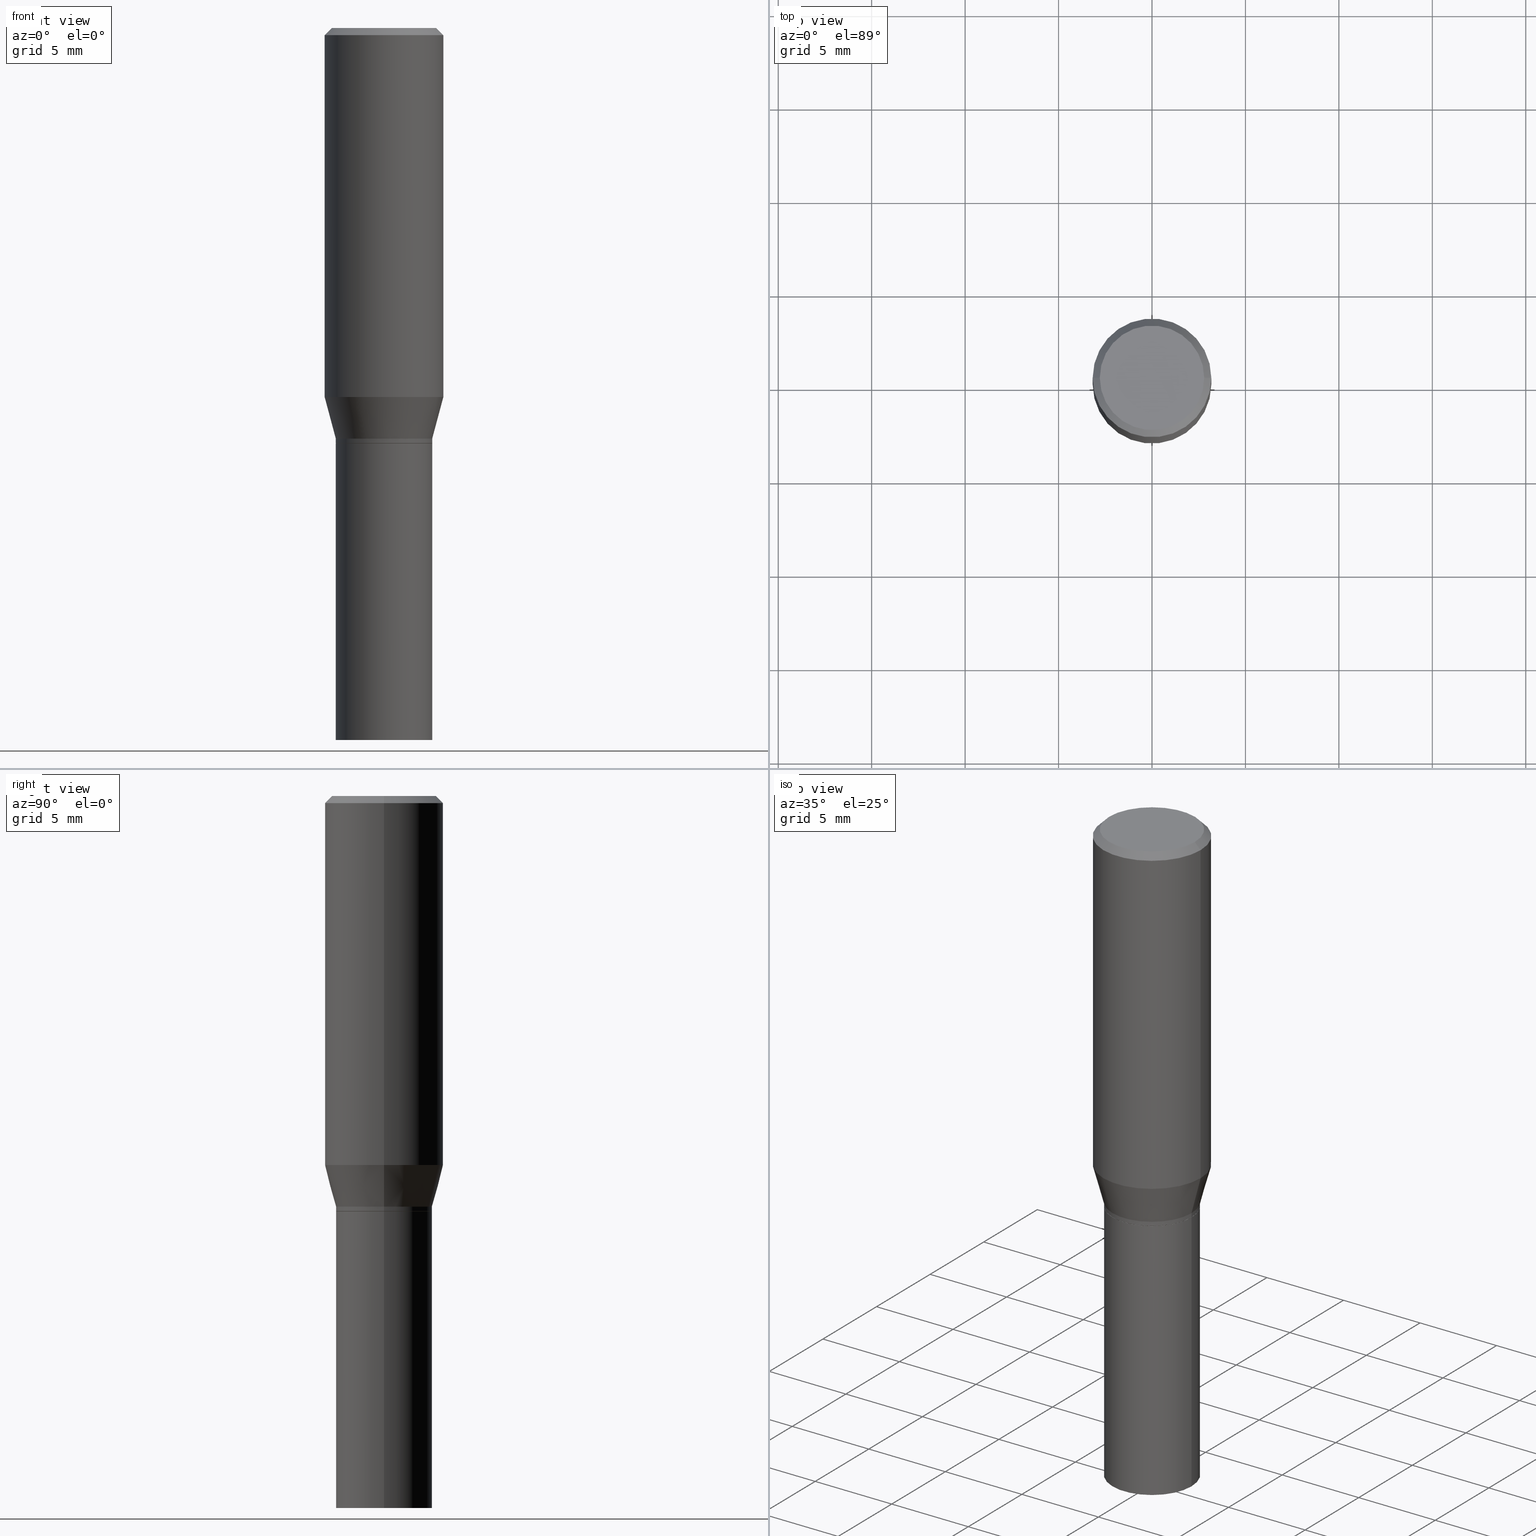
[diagram: canonical four-view strip — front | top / right | iso, engineering-drawing reading convention]
A machine part, canonical four-view strip (front | top / right | iso — engineering-drawing reading convention). The complete STEP part file that produces these views, byte-faithful:
ISO-10303-21;
HEADER;
FILE_DESCRIPTION (( 'STEP AP203' ),
    '1' );
FILE_NAME ('30525.STEP',
    '2024-03-13T16:14:10',
    ( '' ),
    ( '' ),
    'SwSTEP 2.0',
    'SolidWorks 2023',
    '' );
FILE_SCHEMA (( 'CONFIG_CONTROL_DESIGN' ));
ENDSEC;

DATA;
#1 = CARTESIAN_POINT ( 'NONE',  ( 2.139785205411994522E-29, -3.055046171487752730E-15, -0.8750000000000001110 ) ) ;
#2 = VERTEX_POINT ( 'NONE', #238 ) ;
#3 = AXIS2_PLACEMENT_3D ( 'NONE', #235, #348, #102 ) ;
#4 = AXIS2_PLACEMENT_3D ( 'NONE', #151, #255, #45 ) ;
#5 = AXIS2_PLACEMENT_3D ( 'NONE', #337, #74, #306 ) ;
#6 = CARTESIAN_POINT ( 'NONE',  ( 2.139785205411994522E-29, -3.055046171487752730E-15, -0.8750000000000001110 ) ) ;
#7 = ORIENTED_EDGE ( 'NONE', *, *, #211, .T. ) ;
#8 = DIRECTION ( 'NONE',  ( -2.445468806185136597E-29, 3.491481338843145583E-15, 1.000000000000000000 ) ) ;
#9 = PRODUCT ( '30525', '30525', '', ( #435 ) ) ;
#10 = FACE_OUTER_BOUND ( 'NONE', #294, .T. ) ;
#11 = ORIENTED_EDGE ( 'NONE', *, *, #301, .F. ) ;
#12 = DIRECTION ( 'NONE',  ( 2.438088387897960049E-29, -3.491481338843145188E-15, -1.000000000000000000 ) ) ;
#13 = ORIENTED_EDGE ( 'NONE', *, *, #37, .T. ) ;
#14 = CARTESIAN_POINT ( 'NONE',  ( 3.668203209277705088E-31, -5.237222008264718399E-17, -0.01499999999999999944 ) ) ;
#15 = VECTOR ( 'NONE', #373, 39.37007874015748143 ) ;
#16 = APPROVAL_PERSON_ORGANIZATION ( #276, #130, #96 ) ;
#17 = DIRECTION ( 'NONE',  ( 1.000000000000000000, -6.982962677686269077E-15, 0.000000000000000000 ) ) ;
#18 = ORIENTED_EDGE ( 'NONE', *, *, #37, .F. ) ;
#19 = ADVANCED_FACE ( 'NONE', ( #398 ), #426, .T. ) ;
#20 = FACE_OUTER_BOUND ( 'NONE', #75, .T. ) ;
#21 = CIRCLE ( 'NONE', #194, 0.1015500000000000014 ) ;
#22 = APPLICATION_PROTOCOL_DEFINITION ( 'international standard', 'config_control_design', 1994, #371 ) ;
#23 = CARTESIAN_POINT ( 'NONE',  ( 0.000000000000000000, 0.000000000000000000, 0.000000000000000000 ) ) ;
#24 = PERSON_AND_ORGANIZATION ( #442, #240 ) ;
#25 = AXIS2_PLACEMENT_3D ( 'NONE', #83, #262, #378 ) ;
#26 = DIRECTION ( 'NONE',  ( 1.000000000000000000, -6.982962677686264344E-15, 0.000000000000000000 ) ) ;
#27 = PERSON_AND_ORGANIZATION ( #442, #240 ) ;
#28 = CARTESIAN_POINT ( 'NONE',  ( -0.1015500000000000430, -2.298575209934939135E-15, -0.8650000000000001021 ) ) ;
#29 = DIRECTION ( 'NONE',  ( 0.2588190451025214611, 1.565188264969620982E-15, 0.9659258262890679791 ) ) ;
#30 = EDGE_CURVE ( 'NONE', #42, #159, #365, .T. ) ;
#31 = VERTEX_POINT ( 'NONE', #142 ) ;
#32 = COORDINATED_UNIVERSAL_TIME_OFFSET ( 5, 0, .BEHIND. ) ;
#33 = DIRECTION ( 'NONE',  ( 0.7071067811865595631, -2.468850131082382884E-15, 0.7071067811865354713 ) ) ;
#34 = CONICAL_SURFACE ( 'NONE', #429, 0.1015500000000000430, 0.2617993877991501850 ) ;
#35 = DIRECTION ( 'NONE',  ( -2.445468806185136597E-29, 3.491481338843145583E-15, 1.000000000000000000 ) ) ;
#36 = VERTEX_POINT ( 'NONE', #133 ) ;
#37 = EDGE_CURVE ( 'NONE', #318, #52, #246, .T. ) ;
#38 = CC_DESIGN_PERSON_AND_ORGANIZATION_ASSIGNMENT ( #241, #280, ( #416 ) ) ;
#39 = CARTESIAN_POINT ( 'NONE',  ( 3.668203209277704895E-29, -5.237222008264718177E-15, -1.500000000000000222 ) ) ;
#40 = DIRECTION ( 'NONE',  ( -2.445468806185136597E-29, 3.491481338843145583E-15, 1.000000000000000000 ) ) ;
#41 = ORIENTED_EDGE ( 'NONE', *, *, #367, .F. ) ;
#42 = VERTEX_POINT ( 'NONE', #357 ) ;
#43 = CONICAL_SURFACE ( 'NONE', #231, 0.1015500000000000430, 0.2617993877991501850 ) ;
#44 = SECURITY_CLASSIFICATION ( '', '', #284 ) ;
#45 = DIRECTION ( 'NONE',  ( 1.000000000000000000, -6.982962677686266711E-15, 4.876176775795935793E-29 ) ) ;
#46 = CARTESIAN_POINT ( 'NONE',  ( 0.000000000000000000, 0.000000000000000000, 0.000000000000000000 ) ) ;
#47 = ORIENTED_EDGE ( 'NONE', *, *, #125, .T. ) ;
#48 = DIRECTION ( 'NONE',  ( -2.445468806185136597E-29, 3.491481338843145583E-15, 1.000000000000000000 ) ) ;
#49 = EDGE_LOOP ( 'NONE', ( #432, #436, #7, #85 ) ) ;
#50 = EDGE_CURVE ( 'NONE', #160, #268, #415, .T. ) ;
#51 = ORIENTED_EDGE ( 'NONE', *, *, #242, .T. ) ;
#52 = VERTEX_POINT ( 'NONE', #418 ) ;
#53 = AXIS2_PLACEMENT_3D ( 'NONE', #245, #319, #392 ) ;
#54 = AXIS2_PLACEMENT_3D ( 'NONE', #299, #444, #304 ) ;
#55 = EDGE_CURVE ( 'NONE', #2, #340, #206, .T. ) ;
#56 = PRODUCT_RELATED_PRODUCT_CATEGORY ( 'detail', '', ( #9 ) ) ;
#57 = FACE_OUTER_BOUND ( 'NONE', #377, .T. ) ;
#58 = AXIS2_PLACEMENT_3D ( 'NONE', #196, #228, #157 ) ;
#59 = MANIFOLD_SOLID_BREP ( 'Body-Move/Copy2[2]', #259 ) ;
#60 = FACE_OUTER_BOUND ( 'NONE', #190, .T. ) ;
#61 = APPROVAL_DATE_TIME ( #386, #199 ) ;
#62 = AXIS2_PLACEMENT_3D ( 'NONE', #173, #325, #26 ) ;
#63 = LOCAL_TIME ( 12, 14, 10.00000000000000000, #317 ) ;
#64 = ADVANCED_FACE ( 'NONE', ( #391 ), #216, .F. ) ;
#65 = FACE_OUTER_BOUND ( 'NONE', #103, .T. ) ;
#66 = CC_DESIGN_PERSON_AND_ORGANIZATION_ASSIGNMENT ( #236, #208, ( #9 ) ) ;
#67 = PERSON_AND_ORGANIZATION ( #442, #240 ) ;
#68 = EDGE_CURVE ( 'NONE', #257, #338, #203, .T. ) ;
#69 = CARTESIAN_POINT ( 'NONE',  ( 0.1015500000000000430, -3.729251218018361863E-15, -0.8650000000000001021 ) ) ;
#70 = CARTESIAN_POINT ( 'NONE',  ( 0.1100000000000000006, -8.322946247794783877E-16, 6.246531070176009917E-17 ) ) ;
#71 = CARTESIAN_POINT ( 'NONE',  ( 0.1250000000000000000, -8.728703347107833388E-16, 6.095220969744919741E-30 ) ) ;
#72 = AXIS2_PLACEMENT_3D ( 'NONE', #282, #88, #113 ) ;
#73 = DIRECTION ( 'NONE',  ( -2.445468806185136597E-29, 3.491481338843145583E-15, 1.000000000000000000 ) ) ;
#74 = DIRECTION ( 'NONE',  ( -2.445468806185136597E-29, 3.491481338843145583E-15, 1.000000000000000000 ) ) ;
#75 = EDGE_LOOP ( 'NONE', ( #401, #182, #13, #428 ) ) ;
#76 = ORIENTED_EDGE ( 'NONE', *, *, #77, .T. ) ;
#77 = EDGE_CURVE ( 'NONE', #31, #52, #89, .T. ) ;
#78 = CARTESIAN_POINT ( 'NONE',  ( 3.576687321579069994E-29, -5.368277968210015545E-15, -1.500000000000000222 ) ) ;
#79 = VECTOR ( 'NONE', #244, 39.37007874015748143 ) ;
#80 = CYLINDRICAL_SURFACE ( 'NONE', #302, 0.1250000000000000000 ) ;
#81 =( NAMED_UNIT ( * ) SI_UNIT ( $, .STERADIAN. ) SOLID_ANGLE_UNIT ( ) );
#82 = VERTEX_POINT ( 'NONE', #446 ) ;
#83 = CARTESIAN_POINT ( 'NONE',  ( 0.000000000000000000, 0.000000000000000000, 0.000000000000000000 ) ) ;
#84 = ORIENTED_EDGE ( 'NONE', *, *, #232, .F. ) ;
#85 = ORIENTED_EDGE ( 'NONE', *, *, #180, .F. ) ;
#86 = ADVANCED_FACE ( 'NONE', ( #267 ), #258, .F. ) ;
#87 = COORDINATED_UNIVERSAL_TIME_OFFSET ( 5, 0, .BEHIND. ) ;
#88 = DIRECTION ( 'NONE',  ( 2.438088387897960049E-29, -3.491481338843145188E-15, -1.000000000000000000 ) ) ;
#89 = CIRCLE ( 'NONE', #239, 0.1250000000000000000 ) ;
#90 = PLANE ( 'NONE',  #72 ) ;
#91 = CIRCLE ( 'NONE', #354, 0.1015500000000000014 ) ;
#92 = CALENDAR_DATE ( 2024, 13, 3 ) ;
#93 = ADVANCED_FACE ( 'NONE', ( #411 ), #43, .T. ) ;
#94 = DIRECTION ( 'NONE',  ( -2.445468806185136597E-29, 3.491481338843145583E-15, 1.000000000000000000 ) ) ;
#95 = ORIENTED_EDGE ( 'NONE', *, *, #180, .T. ) ;
#96 = APPROVAL_ROLE ( '' ) ;
#97 = EDGE_CURVE ( 'NONE', #338, #52, #381, .T. ) ;
#98 = CONICAL_SURFACE ( 'NONE', #413, 0.1250000000000000000, 0.7853981633974460586 ) ;
#99 = DIRECTION ( 'NONE',  ( 1.000000000000000000, -6.982962677686266711E-15, 0.000000000000000000 ) ) ;
#100 = CARTESIAN_POINT ( 'NONE',  ( 0.1250000000000000000, -3.587439146966948866E-15, -0.7774834085625103031 ) ) ;
#101 = CARTESIAN_POINT ( 'NONE',  ( 2.139785205411994522E-29, -3.055046171487752730E-15, -0.8750000000000001110 ) ) ;
#102 = DIRECTION ( 'NONE',  ( 1.000000000000000000, -6.982962677686266711E-15, 4.873416144172425341E-29 ) ) ;
#103 = EDGE_LOOP ( 'NONE', ( #119, #273, #307, #261 ) ) ;
#104 = VECTOR ( 'NONE', #29, 39.37007874015748143 ) ;
#105 = CARTESIAN_POINT ( 'NONE',  ( 0.1015500000000000014, -3.764166031406792723E-15, -0.8750000000000001110 ) ) ;
#106 = ORIENTED_EDGE ( 'NONE', *, *, #50, .F. ) ;
#107 = ADVANCED_FACE ( 'NONE', ( #404 ), #80, .T. ) ;
#108 =( CONVERSION_BASED_UNIT ( 'INCH', #250 ) LENGTH_UNIT ( ) NAMED_UNIT ( #384 ) );
#109 = ORIENTED_EDGE ( 'NONE', *, *, #68, .T. ) ;
#110 = ADVANCED_FACE ( 'NONE', ( #20 ), #266, .T. ) ;
#111 = ORIENTED_EDGE ( 'NONE', *, *, #402, .F. ) ;
#112 = DIRECTION ( 'NONE',  ( 0.7071067811865459074, -7.319954787623249734E-15, -0.7071067811865491270 ) ) ;
#113 = DIRECTION ( 'NONE',  ( -1.000000000000000000, 6.982962677686265922E-15, -4.876176775795935793E-29 ) ) ;
#114 = DIRECTION ( 'NONE',  ( 1.000000000000000000, 0.000000000000000000, 0.000000000000000000 ) ) ;
#115 = ORIENTED_EDGE ( 'NONE', *, *, #148, .F. ) ;
#116 = DIRECTION ( 'NONE',  ( 1.000000000000000000, -6.982962677686266711E-15, 4.873416144172425341E-29 ) ) ;
#117 = LINE ( 'NONE', #372, #185 ) ;
#118 = DIRECTION ( 'NONE',  ( -0.7071067811865595631, 7.493145998870398336E-15, 0.7071067811865354713 ) ) ;
#119 = ORIENTED_EDGE ( 'NONE', *, *, #285, .T. ) ;
#120 = APPROVAL ( #171, 'UNSPECIFIED' ) ;
#121 = ORIENTED_EDGE ( 'NONE', *, *, #179, .T. ) ;
#122 = ORIENTED_EDGE ( 'NONE', *, *, #148, .T. ) ;
#123 = AXIS2_PLACEMENT_3D ( 'NONE', #6, #189, #17 ) ;
#124 = APPROVAL_ROLE ( '' ) ;
#125 = EDGE_CURVE ( 'NONE', #338, #257, #449, .T. ) ;
#126 = VECTOR ( 'NONE', #283, 39.37007874015748143 ) ;
#127 = CIRCLE ( 'NONE', #249, 0.1250000000000000000 ) ;
#128 = APPROVAL_ROLE ( '' ) ;
#129 = ADVANCED_FACE ( 'NONE', ( #248 ), #434, .T. ) ;
#130 = APPROVAL ( #350, 'UNSPECIFIED' ) ;
#131 = PERSON_AND_ORGANIZATION_ROLE ( 'creator' ) ;
#132 = CARTESIAN_POINT ( 'NONE',  ( 3.668203209277705088E-31, -5.237222008264718399E-17, -0.01499999999999999944 ) ) ;
#133 = CARTESIAN_POINT ( 'NONE',  ( 0.1010500000000000009, -3.760674550067950505E-15, -0.8750000000000001110 ) ) ;
#134 = CALENDAR_DATE ( 2024, 13, 3 ) ;
#135 = DIRECTION ( 'NONE',  ( 1.000000000000000000, -6.982962677686265922E-15, 0.000000000000000000 ) ) ;
#136 = DIRECTION ( 'NONE',  ( 1.000000000000000000, -6.982962677686265922E-15, 0.000000000000000000 ) ) ;
#137 = VECTOR ( 'NONE', #419, 39.37007874015748143 ) ;
#138 = VECTOR ( 'NONE', #118, 39.37007874015748143 ) ;
#139 = DIRECTION ( 'NONE',  ( 1.000000000000000000, -6.982962677686266711E-15, 0.000000000000000000 ) ) ;
#140 = DIRECTION ( 'NONE',  ( -2.445468806185136877E-29, 3.491481338843145188E-15, 1.000000000000000000 ) ) ;
#141 = LINE ( 'NONE', #178, #441 ) ;
#142 = CARTESIAN_POINT ( 'NONE',  ( -0.1250000000000000000, -4.952920964692812682E-16, -0.01499999999999999944 ) ) ;
#143 = CARTESIAN_POINT ( 'NONE',  ( -0.1100000000000000006, 7.943120045868128186E-16, 6.246531070174904280E-17 ) ) ;
#144 = ADVANCED_FACE ( 'NONE', ( #57 ), #90, .F. ) ;
#145 = AXIS2_PLACEMENT_3D ( 'NONE', #168, #427, #139 ) ;
#146 = DIRECTION ( 'NONE',  ( 1.000000000000000000, -6.982962677686264344E-15, 0.000000000000000000 ) ) ;
#147 = EDGE_LOOP ( 'NONE', ( #445, #84 ) ) ;
#148 = EDGE_CURVE ( 'NONE', #36, #268, #117, .T. ) ;
#149 = APPLICATION_PROTOCOL_DEFINITION ( 'international standard', 'config_control_design', 1994, #312 ) ;
#150 = DIRECTION ( 'NONE',  ( 1.000000000000000000, -6.982962677686266711E-15, 0.000000000000000000 ) ) ;
#151 = CARTESIAN_POINT ( 'NONE',  ( 0.000000000000000000, 0.000000000000000000, 0.000000000000000000 ) ) ;
#152 = LINE ( 'NONE', #443, #138 ) ;
#153 = ORIENTED_EDGE ( 'NONE', *, *, #285, .F. ) ;
#154 = FACE_OUTER_BOUND ( 'NONE', #49, .T. ) ;
#155 = ORIENTED_EDGE ( 'NONE', *, *, #349, .F. ) ;
#156 = CC_DESIGN_APPROVAL ( #199, ( #270 ) ) ;
#157 = DIRECTION ( 'NONE',  ( 1.000000000000000000, -6.982962677686265922E-15, 4.876176775795935793E-29 ) ) ;
#158 = DIRECTION ( 'NONE',  ( -2.445468806185136597E-29, 3.491481338843145583E-15, 1.000000000000000000 ) ) ;
#159 = VERTEX_POINT ( 'NONE', #388 ) ;
#160 = VERTEX_POINT ( 'NONE', #460 ) ;
#161 = AXIS2_PLACEMENT_3D ( 'NONE', #101, #328, #243 ) ;
#162 = DATE_TIME_ROLE ( 'classification_date' ) ;
#163 = DATE_AND_TIME ( #358, #167 ) ;
#164 = EDGE_CURVE ( 'NONE', #52, #31, #127, .T. ) ;
#165 = CIRCLE ( 'NONE', #333, 0.1015500000000000569 ) ;
#166 = APPROVAL_DATE_TIME ( #324, #130 ) ;
#167 = LOCAL_TIME ( 12, 14, 10.00000000000000000, #412 ) ;
#168 = CARTESIAN_POINT ( 'NONE',  ( 2.115330517350143537E-29, -3.020131358099321081E-15, -0.8650000000000001021 ) ) ;
#169 = CARTESIAN_POINT ( 'NONE',  ( 2.115330517350143537E-29, -3.020131358099321081E-15, -0.8650000000000001021 ) ) ;
#170 = CARTESIAN_POINT ( 'NONE',  ( 2.138562471008902281E-29, -3.053300430818330832E-15, -0.8745000000000000551 ) ) ;
#171 = APPROVAL_STATUS ( 'not_yet_approved' ) ;
#172 = ORIENTED_EDGE ( 'NONE', *, *, #164, .T. ) ;
#173 = CARTESIAN_POINT ( 'NONE',  ( 3.668203209277704895E-29, -5.237222008264718177E-15, -1.500000000000000222 ) ) ;
#174 = ORIENTED_EDGE ( 'NONE', *, *, #50, .T. ) ;
#175 = CLOSED_SHELL ( 'NONE', ( #19, #64, #448, #424 ) ) ;
#176 = CONICAL_SURFACE ( 'NONE', #123, 0.1010500000000000009, 0.7853981633974653764 ) ;
#177 = LOCAL_TIME ( 12, 14, 10.00000000000000000, #87 ) ;
#178 = CARTESIAN_POINT ( 'NONE',  ( 0.1015500000000000014, -7.091198599190403876E-16, 4.951757515820773072E-30 ) ) ;
#179 = EDGE_CURVE ( 'NONE', #160, #2, #422, .T. ) ;
#180 = EDGE_CURVE ( 'NONE', #159, #343, #91, .T. ) ;
#181 = LINE ( 'NONE', #353, #137 ) ;
#182 = ORIENTED_EDGE ( 'NONE', *, *, #279, .T. ) ;
#183 = ORIENTED_EDGE ( 'NONE', *, *, #336, .T. ) ;
#184 = EDGE_CURVE ( 'NONE', #186, #318, #360, .T. ) ;
#185 = VECTOR ( 'NONE', #33, 39.37007874015748143 ) ;
#186 = VERTEX_POINT ( 'NONE', #464 ) ;
#187 = DIRECTION ( 'NONE',  ( -2.445468806185136597E-29, 3.491481338843145583E-15, 1.000000000000000000 ) ) ;
#188 = DIRECTION ( 'NONE',  ( 1.000000000000000000, -6.982962677686265922E-15, 4.876176775795935793E-29 ) ) ;
#189 = DIRECTION ( 'NONE',  ( -2.445468806185136597E-29, 3.491481338843145583E-15, 1.000000000000000000 ) ) ;
#190 = EDGE_LOOP ( 'NONE', ( #310, #305, #172, #227 ) ) ;
#191 = ORIENTED_EDGE ( 'NONE', *, *, #211, .F. ) ;
#192 = PLANE ( 'NONE',  #327 ) ;
#193 = ORIENTED_EDGE ( 'NONE', *, *, #399, .T. ) ;
#194 = AXIS2_PLACEMENT_3D ( 'NONE', #39, #214, #458 ) ;
#195 = CC_DESIGN_APPROVAL ( #120, ( #416 ) ) ;
#196 = CARTESIAN_POINT ( 'NONE',  ( 2.139785205411994522E-29, -3.055046171487752730E-15, -0.8750000000000001110 ) ) ;
#197 = ORIENTED_EDGE ( 'NONE', *, *, #68, .F. ) ;
#198 = EDGE_CURVE ( 'NONE', #340, #31, #181, .T. ) ;
#199 = APPROVAL ( #313, 'UNSPECIFIED' ) ;
#200 = AXIS2_PLACEMENT_3D ( 'NONE', #169, #423, #293 ) ;
#201 = APPROVAL_DATE_TIME ( #320, #120 ) ;
#202 = CARTESIAN_POINT ( 'NONE',  ( 2.139785205411994522E-29, -3.055046171487752730E-15, -0.8750000000000001110 ) ) ;
#203 = CIRCLE ( 'NONE', #387, 0.1100000000000000006 ) ;
#204 = PERSON_AND_ORGANIZATION_ROLE ( 'creator' ) ;
#205 = CC_DESIGN_APPROVAL ( #130, ( #44 ) ) ;
#206 = LINE ( 'NONE', #28, #79 ) ;
#207 = CARTESIAN_POINT ( 'NONE',  ( 3.668203209277705088E-31, -5.237222008264718399E-17, -0.01499999999999999944 ) ) ;
#208 = PERSON_AND_ORGANIZATION_ROLE ( 'design_owner' ) ;
#209 = DIRECTION ( 'NONE',  ( 2.445468806185136597E-29, -3.491481338843145583E-15, -1.000000000000000000 ) ) ;
#210 = DIRECTION ( 'NONE',  ( 2.445468806185136597E-29, -3.491481338843145583E-15, -1.000000000000000000 ) ) ;
#211 = EDGE_CURVE ( 'NONE', #82, #343, #141, .T. ) ;
#212 = CIRCLE ( 'NONE', #161, 0.1010500000000000009 ) ;
#213 = APPROVAL_PERSON_ORGANIZATION ( #67, #120, #128 ) ;
#214 = DIRECTION ( 'NONE',  ( -2.445468806185136597E-29, 3.491481338843145583E-15, 1.000000000000000000 ) ) ;
#215 = ORIENTED_EDGE ( 'NONE', *, *, #367, .T. ) ;
#216 = PLANE ( 'NONE',  #459 ) ;
#217 = DIRECTION ( 'NONE',  ( -2.445468806185136597E-29, 3.491481338843145583E-15, 1.000000000000000000 ) ) ;
#218 = ADVANCED_FACE ( 'NONE', ( #65 ), #34, .T. ) ;
#219 = CC_DESIGN_PERSON_AND_ORGANIZATION_ASSIGNMENT ( #451, #204, ( #270 ) ) ;
#220 = CARTESIAN_POINT ( 'NONE',  ( -0.1250000000000000000, 8.204981146281362596E-16, -0.01499999999999999944 ) ) ;
#221 = ORIENTED_EDGE ( 'NONE', *, *, #30, .T. ) ;
#222 = DIRECTION ( 'NONE',  ( 1.000000000000000000, -6.982962677686266711E-15, 4.876176775795935793E-29 ) ) ;
#223 = AXIS2_PLACEMENT_3D ( 'NONE', #1, #158, #146 ) ;
#224 = FACE_OUTER_BOUND ( 'NONE', #447, .T. ) ;
#225 = ORIENTED_EDGE ( 'NONE', *, *, #349, .T. ) ;
#226 = CARTESIAN_POINT ( 'NONE',  ( 0.1015500000000000430, -7.091198599190406834E-16, 4.951757515820775174E-30 ) ) ;
#227 = ORIENTED_EDGE ( 'NONE', *, *, #399, .F. ) ;
#228 = DIRECTION ( 'NONE',  ( -2.438088387897960049E-29, 3.491481338843145188E-15, 1.000000000000000000 ) ) ;
#229 = LINE ( 'NONE', #226, #15 ) ;
#230 = ORIENTED_EDGE ( 'NONE', *, *, #184, .T. ) ;
#231 = AXIS2_PLACEMENT_3D ( 'NONE', #300, #254, #368 ) ;
#232 = EDGE_CURVE ( 'NONE', #42, #82, #21, .T. ) ;
#233 = ADVANCED_BREP_SHAPE_REPRESENTATION ( '30525', ( #383, #59, #380 ), #303 ) ;
#234 = SHAPE_DEFINITION_REPRESENTATION ( #252, #233 ) ;
#235 = CARTESIAN_POINT ( 'NONE',  ( -1.527569687898032182E-45, 2.180964666402148975E-31, 6.246531070175450319E-17 ) ) ;
#236 = PERSON_AND_ORGANIZATION ( #442, #240 ) ;
#237 = CARTESIAN_POINT ( 'NONE',  ( -0.1015500000000000430, 7.215561481643820444E-16, -4.995178584153859203E-30 ) ) ;
#238 = CARTESIAN_POINT ( 'NONE',  ( -0.1015500000000000430, -2.062482801245490110E-15, -0.8650000000000001021 ) ) ;
#239 = AXIS2_PLACEMENT_3D ( 'NONE', #14, #8, #150 ) ;
#240 = ORGANIZATION ( 'UNSPECIFIED', 'UNSPECIFIED', '' ) ;
#241 = PERSON_AND_ORGANIZATION ( #442, #240 ) ;
#242 = EDGE_CURVE ( 'NONE', #36, #374, #212, .T. ) ;
#243 = DIRECTION ( 'NONE',  ( 1.000000000000000000, -6.982962677686269077E-15, 0.000000000000000000 ) ) ;
#244 = DIRECTION ( 'NONE',  ( -0.2588190451025214611, 5.211531920934550253E-15, 0.9659258262890679791 ) ) ;
#245 = CARTESIAN_POINT ( 'NONE',  ( 1.901311422966112888E-29, -2.714568812256165922E-15, -0.7774834085625103031 ) ) ;
#246 = LINE ( 'NONE', #71, #126 ) ;
#247 = CARTESIAN_POINT ( 'NONE',  ( 1.901311422966112888E-29, -2.714568812256165922E-15, -0.7774834085625103031 ) ) ;
#248 = FACE_OUTER_BOUND ( 'NONE', #375, .T. ) ;
#249 = AXIS2_PLACEMENT_3D ( 'NONE', #286, #35, #393 ) ;
#250 = LENGTH_MEASURE_WITH_UNIT ( LENGTH_MEASURE( 0.02539999999999999897 ), #334 );
#251 = EDGE_LOOP ( 'NONE', ( #344, #197, #193, #76 ) ) ;
#252 = PRODUCT_DEFINITION_SHAPE ( 'NONE', 'NONE',  #270 ) ;
#253 = EDGE_LOOP ( 'NONE', ( #183, #345, #297, #18 ) ) ;
#254 = DIRECTION ( 'NONE',  ( -2.445468806185136597E-29, 3.491481338843145583E-15, 1.000000000000000000 ) ) ;
#255 = DIRECTION ( 'NONE',  ( -2.445468806185136597E-29, 3.491481338843145583E-15, 1.000000000000000000 ) ) ;
#256 = CARTESIAN_POINT ( 'NONE',  ( 0.000000000000000000, 0.000000000000000000, 0.000000000000000000 ) ) ;
#257 = VERTEX_POINT ( 'NONE', #143 ) ;
#258 = PLANE ( 'NONE',  #58 ) ;
#259 = CLOSED_SHELL ( 'NONE', ( #129, #430, #352, #107, #218, #93, #110, #269, #144, #86, #462, #450 ) ) ;
#260 = CIRCLE ( 'NONE', #62, 0.1015500000000000014 ) ;
#261 = ORIENTED_EDGE ( 'NONE', *, *, #184, .F. ) ;
#262 = DIRECTION ( 'NONE',  ( -2.445468806185136597E-29, 3.491481338843145583E-15, 1.000000000000000000 ) ) ;
#263 = CARTESIAN_POINT ( 'NONE',  ( 0.1250000000000000000, -9.099344698040885245E-16, -0.01499999999999999944 ) ) ;
#264 = CYLINDRICAL_SURFACE ( 'NONE', #5, 0.1015500000000000014 ) ;
#265 = ORIENTED_EDGE ( 'NONE', *, *, #465, .F. ) ;
#266 = CYLINDRICAL_SURFACE ( 'NONE', #25, 0.1250000000000000000 ) ;
#267 = FACE_OUTER_BOUND ( 'NONE', #403, .T. ) ;
#268 = VERTEX_POINT ( 'NONE', #390 ) ;
#269 = ADVANCED_FACE ( 'NONE', ( #290 ), #453, .T. ) ;
#270 = PRODUCT_DEFINITION ( 'UNKNOWN', '', #416, #323 ) ;
#271 = VECTOR ( 'NONE', #356, 39.37007874015748143 ) ;
#272 = VECTOR ( 'NONE', #342, 39.37007874015748143 ) ;
#273 = ORIENTED_EDGE ( 'NONE', *, *, #55, .T. ) ;
#274 = LOCAL_TIME ( 12, 14, 10.00000000000000000, #314 ) ;
#275 = CC_DESIGN_PERSON_AND_ORGANIZATION_ASSIGNMENT ( #27, #131, ( #416 ) ) ;
#276 = PERSON_AND_ORGANIZATION ( #442, #240 ) ;
#277 = EDGE_LOOP ( 'NONE', ( #408, #409, #230, #332 ) ) ;
#278 = CIRCLE ( 'NONE', #295, 0.1250000000000000000 ) ;
#279 = EDGE_CURVE ( 'NONE', #340, #318, #278, .T. ) ;
#280 = PERSON_AND_ORGANIZATION_ROLE ( 'design_supplier' ) ;
#281 = DIRECTION ( 'NONE',  ( -1.000000000000000000, 6.982962677686266711E-15, 0.000000000000000000 ) ) ;
#282 = CARTESIAN_POINT ( 'NONE',  ( 7.681258945454893776E-16, 0.1100000000000000006, -3.528302919218688424E-16 ) ) ;
#283 = DIRECTION ( 'NONE',  ( -2.445468806185136877E-29, 3.491481338843145188E-15, 1.000000000000000000 ) ) ;
#284 = SECURITY_CLASSIFICATION_LEVEL ( 'unclassified' ) ;
#285 = EDGE_CURVE ( 'NONE', #186, #2, #421, .T. ) ;
#286 = CARTESIAN_POINT ( 'NONE',  ( 3.668203209277705088E-31, -5.237222008264718399E-17, -0.01499999999999999944 ) ) ;
#287 = CIRCLE ( 'NONE', #346, 0.1010500000000000009 ) ;
#288 = CONICAL_SURFACE ( 'NONE', #54, 0.1010500000000000009, 0.7853981633974653764 ) ;
#289 = EDGE_CURVE ( 'NONE', #82, #42, #260, .T. ) ;
#290 = FACE_OUTER_BOUND ( 'NONE', #251, .T. ) ;
#291 = DIRECTION ( 'NONE',  ( -1.000000000000000000, 6.982962677686266711E-15, 0.000000000000000000 ) ) ;
#292 = CC_DESIGN_PERSON_AND_ORGANIZATION_ASSIGNMENT ( #347, #420, ( #44 ) ) ;
#293 = DIRECTION ( 'NONE',  ( 1.000000000000000000, -6.982962677686266711E-15, 0.000000000000000000 ) ) ;
#294 = EDGE_LOOP ( 'NONE', ( #438, #174, #215, #11 ) ) ;
#295 = AXIS2_PLACEMENT_3D ( 'NONE', #247, #73, #363 ) ;
#296 = CARTESIAN_POINT ( 'NONE',  ( 7.091198599190617855E-16, 0.1015499999999969483, -0.8750000000000005551 ) ) ;
#297 = ORIENTED_EDGE ( 'NONE', *, *, #164, .F. ) ;
#298 = DIRECTION ( 'NONE',  ( 1.000000000000000000, -6.982962677686269077E-15, 0.000000000000000000 ) ) ;
#299 = CARTESIAN_POINT ( 'NONE',  ( 2.139785205411994522E-29, -3.055046171487752730E-15, -0.8750000000000001110 ) ) ;
#300 = CARTESIAN_POINT ( 'NONE',  ( 2.115330517350143537E-29, -3.020131358099321081E-15, -0.8650000000000001021 ) ) ;
#301 = EDGE_CURVE ( 'NONE', #2, #186, #361, .T. ) ;
#302 = AXIS2_PLACEMENT_3D ( 'NONE', #23, #351, #308 ) ;
#303 =( GEOMETRIC_REPRESENTATION_CONTEXT ( 3 ) GLOBAL_UNCERTAINTY_ASSIGNED_CONTEXT ( ( #433 ) ) GLOBAL_UNIT_ASSIGNED_CONTEXT ( ( #108, #400, #81 ) ) REPRESENTATION_CONTEXT ( 'NONE', 'WORKASPACE' ) );
#304 = DIRECTION ( 'NONE',  ( 1.000000000000000000, -6.982962677686269077E-15, 0.000000000000000000 ) ) ;
#305 = ORIENTED_EDGE ( 'NONE', *, *, #97, .T. ) ;
#306 = DIRECTION ( 'NONE',  ( 1.000000000000000000, -6.982962677686266711E-15, 4.876176775795935793E-29 ) ) ;
#307 = ORIENTED_EDGE ( 'NONE', *, *, #336, .F. ) ;
#308 = DIRECTION ( 'NONE',  ( 1.000000000000000000, -6.982962677686266711E-15, 4.876176775795935793E-29 ) ) ;
#309 = CARTESIAN_POINT ( 'NONE',  ( -1.527569687898032182E-45, 2.180964666402148975E-31, 6.246531070175450319E-17 ) ) ;
#310 = ORIENTED_EDGE ( 'NONE', *, *, #125, .F. ) ;
#311 = ORIENTED_EDGE ( 'NONE', *, *, #465, .T. ) ;
#312 = APPLICATION_CONTEXT ( 'configuration controlled 3d designs of mechanical parts and assemblies' ) ;
#313 = APPROVAL_STATUS ( 'not_yet_approved' ) ;
#314 = COORDINATED_UNIVERSAL_TIME_OFFSET ( 5, 0, .BEHIND. ) ;
#315 = VECTOR ( 'NONE', #112, 39.37007874015748143 ) ;
#316 = APPROVAL_PERSON_ORGANIZATION ( #24, #199, #124 ) ;
#317 = COORDINATED_UNIVERSAL_TIME_OFFSET ( 5, 0, .BEHIND. ) ;
#318 = VERTEX_POINT ( 'NONE', #100 ) ;
#319 = DIRECTION ( 'NONE',  ( -2.445468806185136597E-29, 3.491481338843145583E-15, 1.000000000000000000 ) ) ;
#320 = DATE_AND_TIME ( #92, #177 ) ;
#321 = CARTESIAN_POINT ( 'NONE',  ( 2.138562471008902281E-29, -3.053300430818330832E-15, -0.8745000000000000551 ) ) ;
#322 = DIRECTION ( 'NONE',  ( -2.445468806185136597E-29, 3.491481338843145583E-15, 1.000000000000000000 ) ) ;
#323 = DESIGN_CONTEXT ( 'detailed design', #371, 'design' ) ;
#324 = DATE_AND_TIME ( #389, #274 ) ;
#325 = DIRECTION ( 'NONE',  ( -2.445468806185136597E-29, 3.491481338843145583E-15, 1.000000000000000000 ) ) ;
#326 = CARTESIAN_POINT ( 'NONE',  ( 0.000000000000000000, 0.000000000000000000, 0.000000000000000000 ) ) ;
#327 = AXIS2_PLACEMENT_3D ( 'NONE', #296, #12, #364 ) ;
#328 = DIRECTION ( 'NONE',  ( -2.445468806185136597E-29, 3.491481338843145583E-15, 1.000000000000000000 ) ) ;
#329 = DIRECTION ( 'NONE',  ( -2.445468806185136597E-29, 3.491481338843145583E-15, 1.000000000000000000 ) ) ;
#330 = ORIENTED_EDGE ( 'NONE', *, *, #402, .T. ) ;
#331 = LINE ( 'NONE', #220, #272 ) ;
#332 = ORIENTED_EDGE ( 'NONE', *, *, #279, .F. ) ;
#333 = AXIS2_PLACEMENT_3D ( 'NONE', #321, #385, #135 ) ;
#334 =( LENGTH_UNIT ( ) NAMED_UNIT ( * ) SI_UNIT ( $, .METRE. ) );
#335 = EDGE_LOOP ( 'NONE', ( #51, #311, #155, #115 ) ) ;
#336 = EDGE_CURVE ( 'NONE', #318, #340, #395, .T. ) ;
#337 = CARTESIAN_POINT ( 'NONE',  ( 0.000000000000000000, 0.000000000000000000, 0.000000000000000000 ) ) ;
#338 = VERTEX_POINT ( 'NONE', #70 ) ;
#339 = CYLINDRICAL_SURFACE ( 'NONE', #362, 0.1015500000000000430 ) ;
#340 = VERTEX_POINT ( 'NONE', #463 ) ;
#341 = ORIENTED_EDGE ( 'NONE', *, *, #242, .F. ) ;
#342 = DIRECTION ( 'NONE',  ( -0.7071067811865459074, 2.468850131082240100E-15, -0.7071067811865491270 ) ) ;
#343 = VERTEX_POINT ( 'NONE', #105 ) ;
#344 = ORIENTED_EDGE ( 'NONE', *, *, #97, .F. ) ;
#345 = ORIENTED_EDGE ( 'NONE', *, *, #198, .T. ) ;
#346 = AXIS2_PLACEMENT_3D ( 'NONE', #376, #48, #298 ) ;
#347 = PERSON_AND_ORGANIZATION ( #442, #240 ) ;
#348 = DIRECTION ( 'NONE',  ( -2.445468806185136597E-29, 3.491481338843145583E-15, 1.000000000000000000 ) ) ;
#349 = EDGE_CURVE ( 'NONE', #268, #160, #165, .T. ) ;
#350 = APPROVAL_STATUS ( 'not_yet_approved' ) ;
#351 = DIRECTION ( 'NONE',  ( -2.445468806185136597E-29, 3.491481338843145583E-15, 1.000000000000000000 ) ) ;
#352 = ADVANCED_FACE ( 'NONE', ( #60 ), #98, .T. ) ;
#353 = CARTESIAN_POINT ( 'NONE',  ( -0.1250000000000000000, 8.881784197001252323E-16, -6.148668862818632227E-30 ) ) ;
#354 = AXIS2_PLACEMENT_3D ( 'NONE', #202, #329, #455 ) ;
#355 = DATE_AND_TIME ( #134, #406 ) ;
#356 = DIRECTION ( 'NONE',  ( -2.445468806185136877E-29, 3.491481338843145188E-15, 1.000000000000000000 ) ) ;
#357 = CARTESIAN_POINT ( 'NONE',  ( -0.1015500000000000014, -3.424577941711853508E-15, -1.500000000000000222 ) ) ;
#358 = CALENDAR_DATE ( 2024, 13, 3 ) ;
#359 = CARTESIAN_POINT ( 'NONE',  ( 2.115330517350143537E-29, -3.020131358099321081E-15, -0.8650000000000001021 ) ) ;
#360 = LINE ( 'NONE', #69, #104 ) ;
#361 = CIRCLE ( 'NONE', #145, 0.1015500000000000430 ) ;
#362 = AXIS2_PLACEMENT_3D ( 'NONE', #256, #40, #431 ) ;
#363 = DIRECTION ( 'NONE',  ( 1.000000000000000000, -6.982962677686266711E-15, 0.000000000000000000 ) ) ;
#364 = DIRECTION ( 'NONE',  ( -1.000000000000000000, 6.982962677686265922E-15, -4.876176775795935793E-29 ) ) ;
#365 = LINE ( 'NONE', #456, #439 ) ;
#366 = ORIENTED_EDGE ( 'NONE', *, *, #414, .F. ) ;
#367 = EDGE_CURVE ( 'NONE', #268, #186, #229, .T. ) ;
#368 = DIRECTION ( 'NONE',  ( 1.000000000000000000, -6.982962677686266711E-15, 0.000000000000000000 ) ) ;
#369 = CIRCLE ( 'NONE', #223, 0.1015500000000000014 ) ;
#370 = FACE_OUTER_BOUND ( 'NONE', #466, .T. ) ;
#371 = APPLICATION_CONTEXT ( 'configuration controlled 3d designs of mechanical parts and assemblies' ) ;
#372 = CARTESIAN_POINT ( 'NONE',  ( 0.1010500000000000009, -3.760674550067950505E-15, -0.8750000000000001110 ) ) ;
#373 = DIRECTION ( 'NONE',  ( -2.445468806185136877E-29, 3.491481338843145188E-15, 1.000000000000000000 ) ) ;
#374 = VERTEX_POINT ( 'NONE', #396 ) ;
#375 = EDGE_LOOP ( 'NONE', ( #225, #121, #153, #41 ) ) ;
#376 = CARTESIAN_POINT ( 'NONE',  ( 2.139785205411994522E-29, -3.055046171487752730E-15, -0.8750000000000001110 ) ) ;
#377 = EDGE_LOOP ( 'NONE', ( #109, #47 ) ) ;
#378 = DIRECTION ( 'NONE',  ( 1.000000000000000000, -6.982962677686266711E-15, 4.876176775795935793E-29 ) ) ;
#379 = ORIENTED_EDGE ( 'NONE', *, *, #289, .T. ) ;
#380 = AXIS2_PLACEMENT_3D ( 'NONE', #46, #437, #114 ) ;
#381 = LINE ( 'NONE', #263, #315 ) ;
#382 = CC_DESIGN_DATE_AND_TIME_ASSIGNMENT ( #355, #454, ( #270 ) ) ;
#383 = MANIFOLD_SOLID_BREP ( 'Body-Move/Copy2[1]', #175 ) ;
#384 = DIMENSIONAL_EXPONENTS ( 1.000000000000000000, 0.000000000000000000, 0.000000000000000000, 0.000000000000000000, 0.000000000000000000, 0.000000000000000000, 0.000000000000000000 ) ;
#385 = DIRECTION ( 'NONE',  ( -2.445468806185136597E-29, 3.491481338843145583E-15, 1.000000000000000000 ) ) ;
#386 = DATE_AND_TIME ( #457, #63 ) ;
#387 = AXIS2_PLACEMENT_3D ( 'NONE', #309, #187, #116 ) ;
#388 = CARTESIAN_POINT ( 'NONE',  ( -0.1015500000000000014, -3.424577941711853508E-15, -0.8750000000000001110 ) ) ;
#389 = CALENDAR_DATE ( 2024, 13, 3 ) ;
#390 = CARTESIAN_POINT ( 'NONE',  ( 0.1015500000000000569, -3.762420290737372008E-15, -0.8745000000000000551 ) ) ;
#391 = FACE_OUTER_BOUND ( 'NONE', #147, .T. ) ;
#392 = DIRECTION ( 'NONE',  ( 1.000000000000000000, -6.982962677686266711E-15, 0.000000000000000000 ) ) ;
#393 = DIRECTION ( 'NONE',  ( 1.000000000000000000, -6.982962677686266711E-15, 0.000000000000000000 ) ) ;
#394 = AXIS2_PLACEMENT_3D ( 'NONE', #170, #322, #136 ) ;
#395 = CIRCLE ( 'NONE', #53, 0.1250000000000000000 ) ;
#396 = CARTESIAN_POINT ( 'NONE',  ( -0.1010500000000000009, -2.334393509828060482E-15, -0.8750000000000001110 ) ) ;
#397 = ORIENTED_EDGE ( 'NONE', *, *, #414, .T. ) ;
#398 = FACE_OUTER_BOUND ( 'NONE', #410, .T. ) ;
#399 = EDGE_CURVE ( 'NONE', #257, #31, #331, .T. ) ;
#400 =( NAMED_UNIT ( * ) PLANE_ANGLE_UNIT ( ) SI_UNIT ( $, .RADIAN. ) );
#401 = ORIENTED_EDGE ( 'NONE', *, *, #198, .F. ) ;
#402 = EDGE_CURVE ( 'NONE', #343, #159, #369, .T. ) ;
#403 = EDGE_LOOP ( 'NONE', ( #341, #366 ) ) ;
#404 = FACE_OUTER_BOUND ( 'NONE', #253, .T. ) ;
#405 = AXIS2_PLACEMENT_3D ( 'NONE', #207, #209, #291 ) ;
#406 = LOCAL_TIME ( 12, 14, 10.00000000000000000, #32 ) ;
#407 = FACE_OUTER_BOUND ( 'NONE', #335, .T. ) ;
#408 = ORIENTED_EDGE ( 'NONE', *, *, #55, .F. ) ;
#409 = ORIENTED_EDGE ( 'NONE', *, *, #301, .T. ) ;
#410 = EDGE_LOOP ( 'NONE', ( #379, #221, #111, #191 ) ) ;
#411 = FACE_OUTER_BOUND ( 'NONE', #277, .T. ) ;
#412 = COORDINATED_UNIVERSAL_TIME_OFFSET ( 5, 0, .BEHIND. ) ;
#413 = AXIS2_PLACEMENT_3D ( 'NONE', #132, #210, #281 ) ;
#414 = EDGE_CURVE ( 'NONE', #374, #36, #287, .T. ) ;
#415 = CIRCLE ( 'NONE', #394, 0.1015500000000000569 ) ;
#416 = PRODUCT_DEFINITION_FORMATION_WITH_SPECIFIED_SOURCE ( 'ANY', '', #9, .NOT_KNOWN. ) ;
#417 = CC_DESIGN_DATE_AND_TIME_ASSIGNMENT ( #163, #162, ( #44 ) ) ;
#418 = CARTESIAN_POINT ( 'NONE',  ( 0.1250000000000000000, -9.252425547934304180E-16, -0.01499999999999999944 ) ) ;
#419 = DIRECTION ( 'NONE',  ( -2.445468806185136877E-29, 3.491481338843145188E-15, 1.000000000000000000 ) ) ;
#420 = PERSON_AND_ORGANIZATION_ROLE ( 'classification_officer' ) ;
#421 = CIRCLE ( 'NONE', #200, 0.1015500000000000430 ) ;
#422 = LINE ( 'NONE', #237, #271 ) ;
#423 = DIRECTION ( 'NONE',  ( -2.445468806185136597E-29, 3.491481338843145583E-15, 1.000000000000000000 ) ) ;
#424 = ADVANCED_FACE ( 'NONE', ( #224 ), #192, .F. ) ;
#425 = DIRECTION ( 'NONE',  ( -2.445468806185136877E-29, 3.491481338843145188E-15, 1.000000000000000000 ) ) ;
#426 = CYLINDRICAL_SURFACE ( 'NONE', #452, 0.1015500000000000014 ) ;
#427 = DIRECTION ( 'NONE',  ( -2.445468806185136597E-29, 3.491481338843145583E-15, 1.000000000000000000 ) ) ;
#428 = ORIENTED_EDGE ( 'NONE', *, *, #77, .F. ) ;
#429 = AXIS2_PLACEMENT_3D ( 'NONE', #359, #94, #99 ) ;
#430 = ADVANCED_FACE ( 'NONE', ( #407 ), #176, .T. ) ;
#431 = DIRECTION ( 'NONE',  ( 1.000000000000000000, -6.982962677686266711E-15, 4.876176775795935793E-29 ) ) ;
#432 = ORIENTED_EDGE ( 'NONE', *, *, #30, .F. ) ;
#433 = UNCERTAINTY_MEASURE_WITH_UNIT (LENGTH_MEASURE( 1.000000000000000082E-05 ), #108, 'distance_accuracy_value', 'NONE');
#434 = CYLINDRICAL_SURFACE ( 'NONE', #4, 0.1015500000000000430 ) ;
#435 = MECHANICAL_CONTEXT ( 'NONE', #312, 'mechanical' ) ;
#436 = ORIENTED_EDGE ( 'NONE', *, *, #232, .T. ) ;
#437 = DIRECTION ( 'NONE',  ( 0.000000000000000000, 0.000000000000000000, 1.000000000000000000 ) ) ;
#438 = ORIENTED_EDGE ( 'NONE', *, *, #179, .F. ) ;
#439 = VECTOR ( 'NONE', #140, 39.37007874015748143 ) ;
#440 = DIRECTION ( 'NONE',  ( -2.438088387897960049E-29, 3.491481338843145188E-15, 1.000000000000000000 ) ) ;
#441 = VECTOR ( 'NONE', #425, 39.37007874015748143 ) ;
#442 = PERSON ( 'UNSPECIFIED', 'UNSPECIFIED', 'UNSPECIFIED', ('UNSPECIFIED'), ('UNSPECIFIED'), ('UNSPECIFIED') ) ;
#443 = CARTESIAN_POINT ( 'NONE',  ( -0.1010500000000000009, -2.337042737002171288E-15, -0.8750000000000001110 ) ) ;
#444 = DIRECTION ( 'NONE',  ( -2.445468806185136597E-29, 3.491481338843145583E-15, 1.000000000000000000 ) ) ;
#445 = ORIENTED_EDGE ( 'NONE', *, *, #289, .F. ) ;
#446 = CARTESIAN_POINT ( 'NONE',  ( 0.1015500000000000014, -5.946341868183758959E-15, -1.500000000000000222 ) ) ;
#447 = EDGE_LOOP ( 'NONE', ( #330, #95 ) ) ;
#448 = ADVANCED_FACE ( 'NONE', ( #154 ), #264, .T. ) ;
#449 = CIRCLE ( 'NONE', #3, 0.1100000000000000006 ) ;
#450 = ADVANCED_FACE ( 'NONE', ( #10 ), #339, .T. ) ;
#451 = PERSON_AND_ORGANIZATION ( #442, #240 ) ;
#452 = AXIS2_PLACEMENT_3D ( 'NONE', #326, #217, #222 ) ;
#453 = CONICAL_SURFACE ( 'NONE', #405, 0.1250000000000000000, 0.7853981633974460586 ) ;
#454 = DATE_TIME_ROLE ( 'creation_date' ) ;
#455 = DIRECTION ( 'NONE',  ( 1.000000000000000000, -6.982962677686264344E-15, 0.000000000000000000 ) ) ;
#456 = CARTESIAN_POINT ( 'NONE',  ( -0.1015500000000000014, 7.215561481643817485E-16, -4.995178584153857101E-30 ) ) ;
#457 = CALENDAR_DATE ( 2024, 13, 3 ) ;
#458 = DIRECTION ( 'NONE',  ( 1.000000000000000000, -6.982962677686264344E-15, 0.000000000000000000 ) ) ;
#459 = AXIS2_PLACEMENT_3D ( 'NONE', #78, #440, #188 ) ;
#460 = CARTESIAN_POINT ( 'NONE',  ( -0.1015500000000000569, -2.331744282653948886E-15, -0.8745000000000000551 ) ) ;
#461 = CC_DESIGN_SECURITY_CLASSIFICATION ( #44, ( #416 ) ) ;
#462 = ADVANCED_FACE ( 'NONE', ( #370 ), #288, .T. ) ;
#463 = CARTESIAN_POINT ( 'NONE',  ( -0.1250000000000000000, -1.826390392556040295E-15, -0.7774834085625103031 ) ) ;
#464 = CARTESIAN_POINT ( 'NONE',  ( 0.1015500000000000430, -3.729251218018361863E-15, -0.8650000000000001021 ) ) ;
#465 = EDGE_CURVE ( 'NONE', #374, #160, #152, .T. ) ;
#466 = EDGE_LOOP ( 'NONE', ( #265, #397, #122, #106 ) ) ;
ENDSEC;
END-ISO-10303-21;
